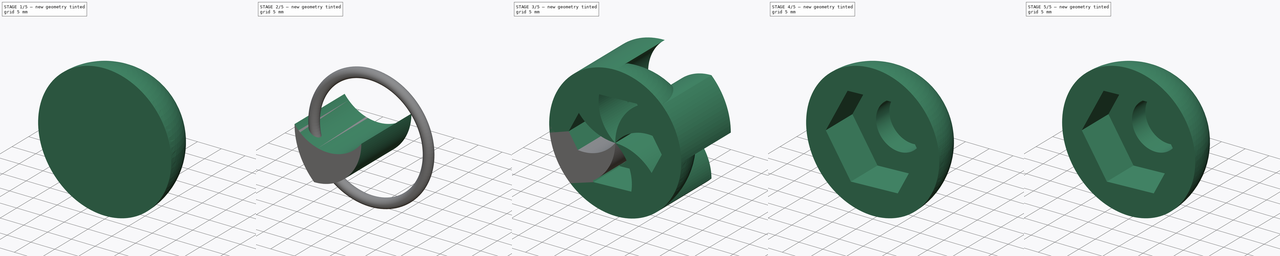
[diagram: build sequence overview — one tinted view per stage of 5, left to right]
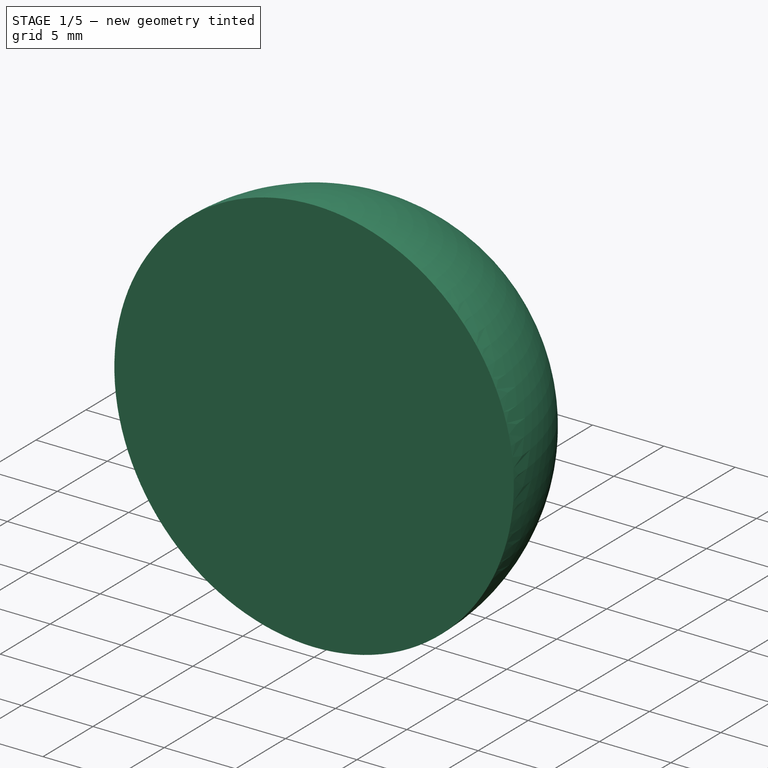
[diagram: stage 1 of 5 — iso view after this stage's code; geometry added in this stage tinted green]
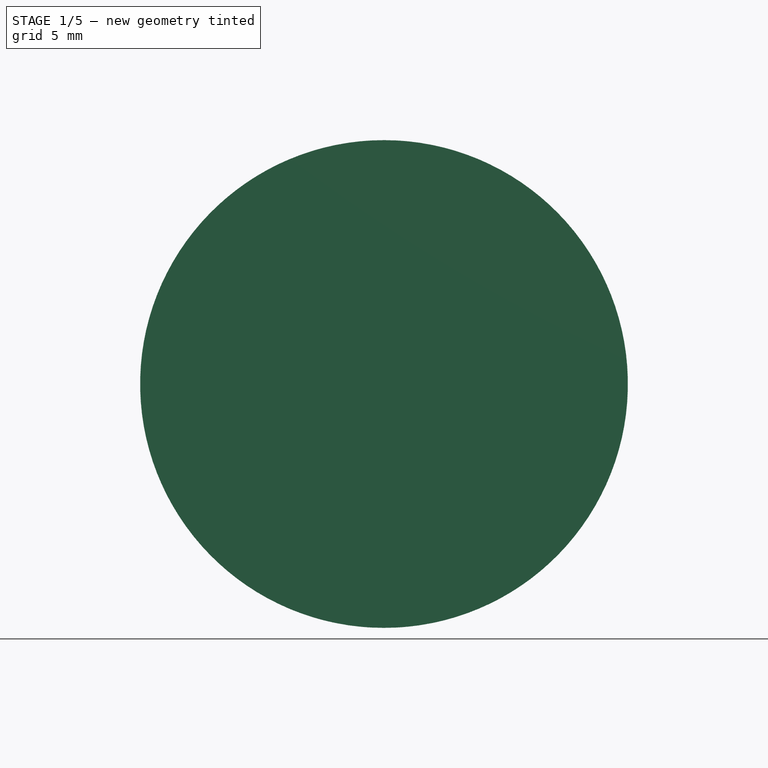
[diagram: stage 1 of 5 — front view after this stage's code; geometry added in this stage tinted green]
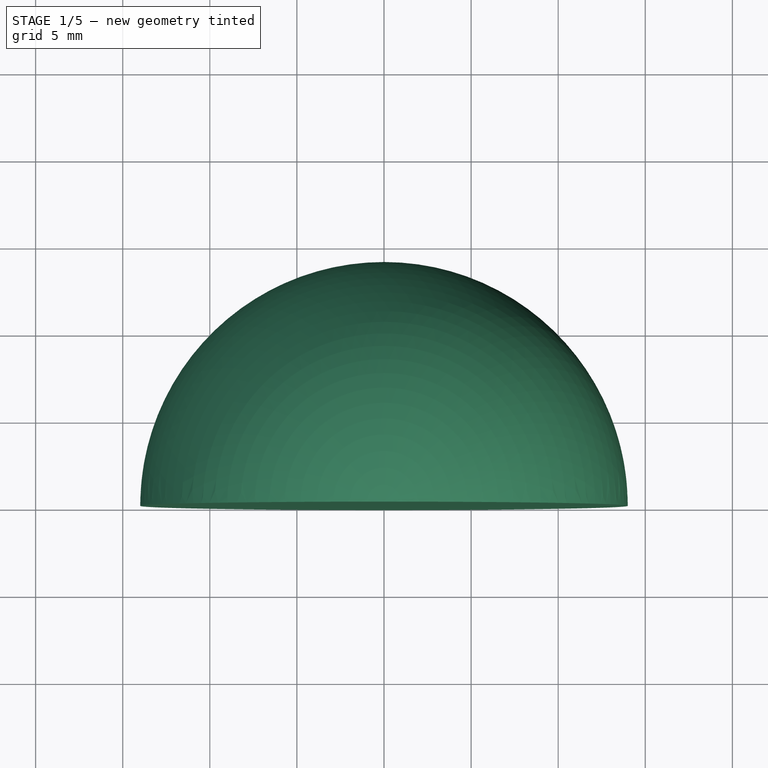
[diagram: stage 1 of 5 — top view after this stage's code; geometry added in this stage tinted green]
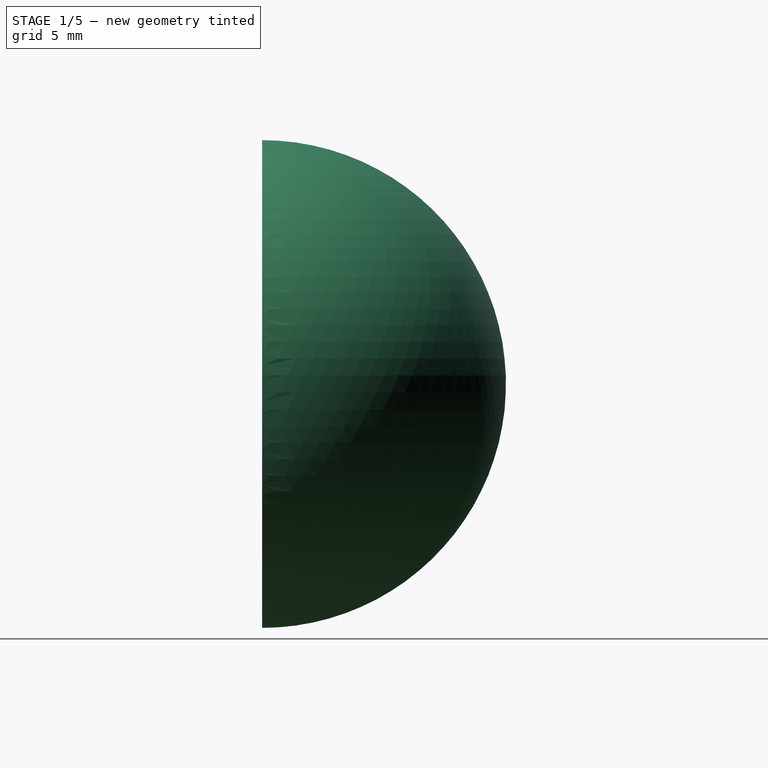
[diagram: stage 1 of 5 — right view after this stage's code; geometry added in this stage tinted green]
FCSTD DOCUMENT  (FreeCAD 0.16R5667 (Git))
Label: embellecedor-tuercaM10
License: All rights reserved
LicenseURL: http://en.wikipedia.org/wiki/All_rights_reserved
objects: Part::FeaturePython×6, Sketcher::SketchObject×3, PartDesign::Pocket×2, App::DocumentObjectGroup×2, Part::Cut×2, Part::Sphere×1, Part::Extrusion×1, Part::MultiCommon×1, Part::Torus×1, Part::MultiFuse×1
note: 20 computed .brp shape members not serialized (recipe doc carries the construction recipe); baked Part::Feature solids carry a one-line shape summary decoded from their .brp

FEATURE [Part::Sphere] Sphere  label="Esfera"
  Angle1 = -90
  Angle2 = 90
  Angle3 = 180
  Radius = 14
FEATURE [Part::Torus] Torus  label="Toro"
  Angle1 = -180
  Angle2 = 180
  Angle3 = 360
  Placement = pos=(0,3,0) rot=(1,0,0;1.5708rad)
  Radius1 = 12
  Radius2 = 1
FEATURE [Part::FeaturePython] Clone004  label="Clone of Toro"  # Draft clone (typed FeaturePython)
  Objects = -> [Torus]
  Placement = pos=(0,3,0) rot=(1,0,0;1.5708rad)
  Scale = (1,1,1)
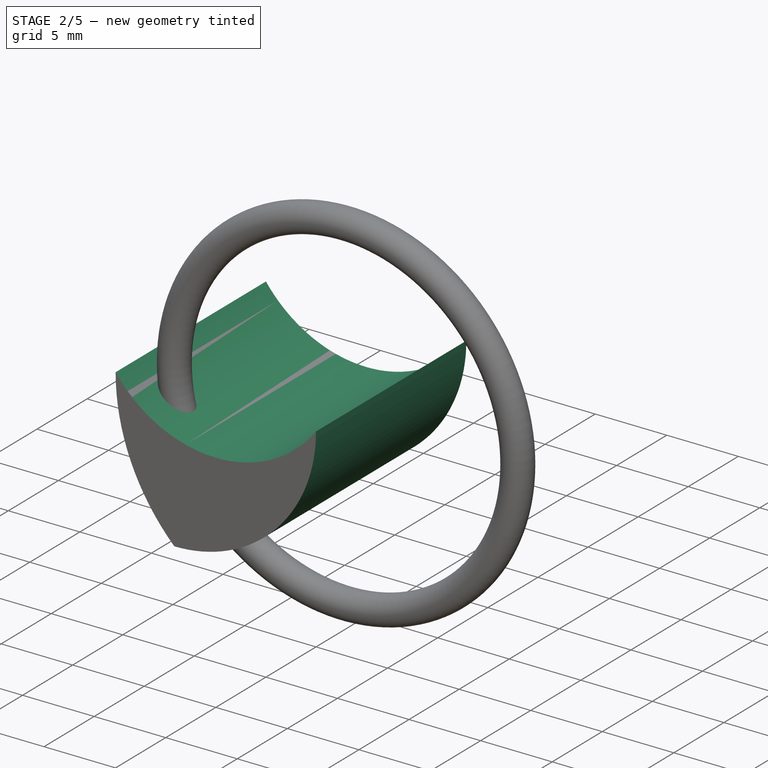
[diagram: stage 2 of 5 — iso view after this stage's code; geometry added in this stage tinted green]
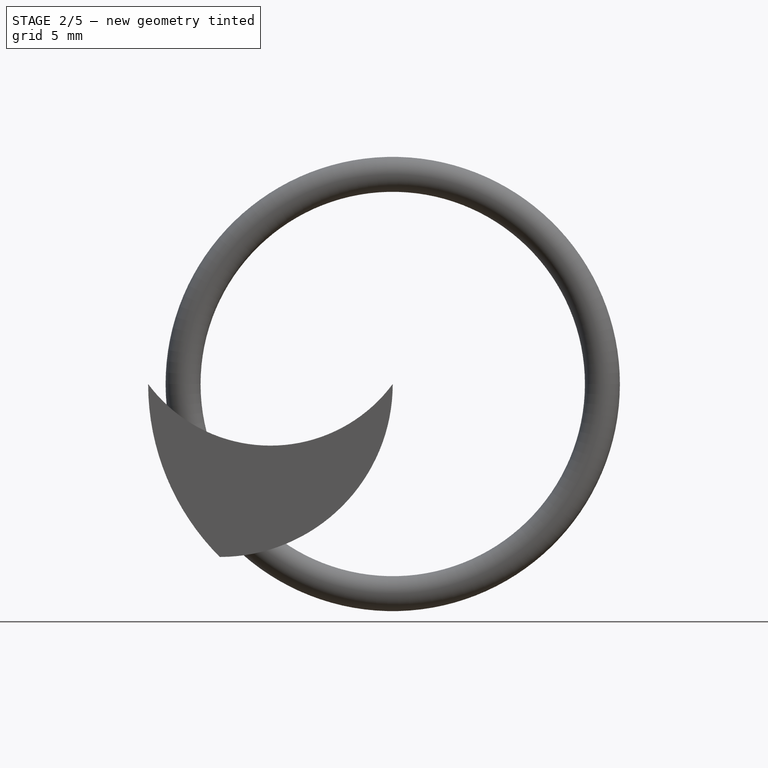
[diagram: stage 2 of 5 — front view after this stage's code; geometry added in this stage tinted green]
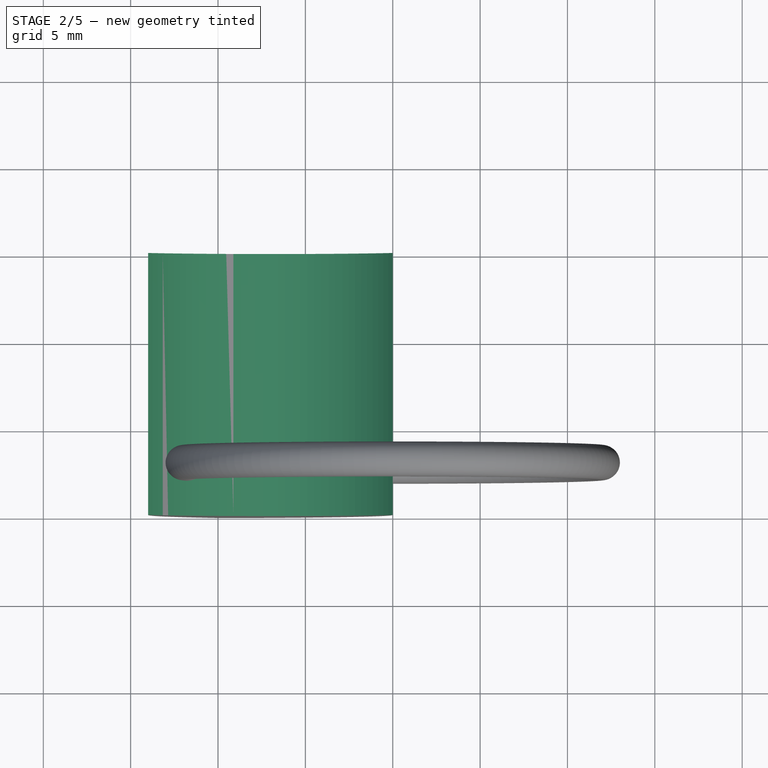
[diagram: stage 2 of 5 — top view after this stage's code; geometry added in this stage tinted green]
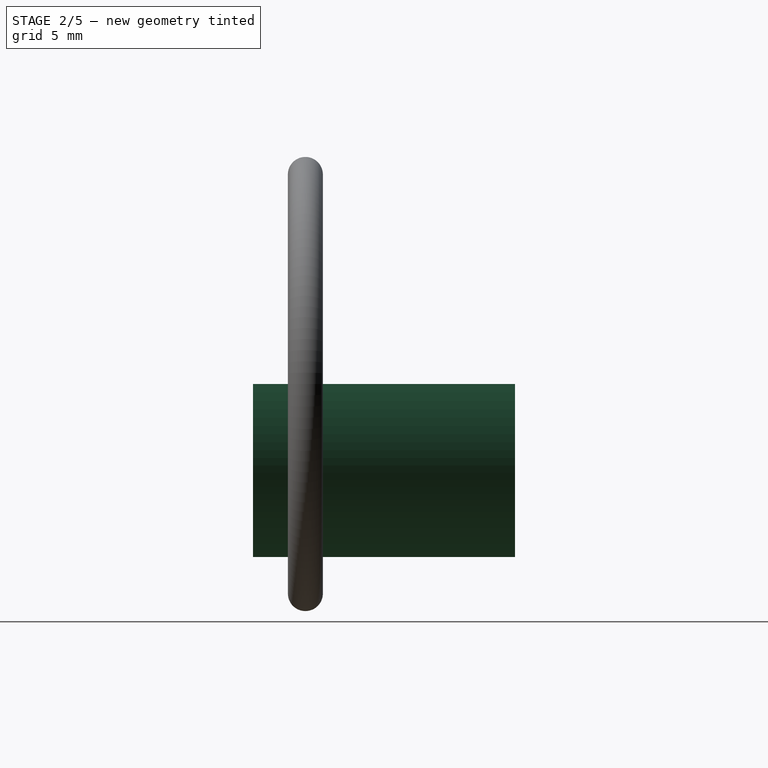
[diagram: stage 2 of 5 — right view after this stage's code; geometry added in this stage tinted green]
FEATURE [Sketcher::SketchObject] Sketch
  ExternalGeometry = -> [Sphere]
  Placement = pos=(0,0,0) rot=(1,0,0;1.5708rad)
  Support = -> Sphere [Face2]
  sketch-geometry (7):
    g0: LineSegment StartX=-5.27314 StartY=8.34649 StartZ=0 EndX=-9.86485 EndY=-0.393428 EndZ=0
    g1: LineSegment StartX=-9.86485 StartY=-0.393428 StartZ=0 EndX=-4.5917 EndY=-8.73992 EndZ=0
    g2: LineSegment StartX=-4.5917 StartY=-8.73992 StartZ=0 EndX=5.27314 EndY=-8.34649 EndZ=0
    g3: LineSegment StartX=5.27314 StartY=-8.34649 StartZ=0 EndX=9.86485 EndY=0.393428 EndZ=0
    g4: LineSegment StartX=9.86485 StartY=0.393428 StartZ=0 EndX=4.5917 EndY=8.73992 EndZ=0
    g5: LineSegment StartX=4.5917 StartY=8.73992 StartZ=0 EndX=-5.27314 EndY=8.34649 EndZ=0
    g6: Circle [constr] CenterX=0 CenterY=0 CenterZ=0 NormalX=0 NormalY=0 NormalZ=1 Radius=9.87269
  constraints (16):
    c: Coincident(g0,g1)
    c: Coincident(g1,g2)
    c: Coincident(g2,g3)
    c: Coincident(g3,g4)
    c: Coincident(g4,g5)
    c: Coincident(g5,g0)
    c: Equal(g0, g1-g5) x5
    c: PointOnObject(g0,g6)
    c: PointOnObject(g1,g6)
    c: PointOnObject(g2,g6)
    c: PointOnObject(g3,g6)
    c: PointOnObject(g4,g6)
    c: PointOnObject(g5,g6)
    c: Coincident(g3,g-1)
    c: Coincident(g6,g-1)
    c: Distance(g4,g2) = 17.1
FEATURE [PartDesign::Pocket] Pocket
  Length = 8
  Sketch = -> Sketch
  Type = 0
FEATURE [Sketcher::SketchObject] Sketch001
  Placement = pos=(0,8,0) rot=(1,0,0;1.5708rad)
  Support = -> Pocket [Face10]
  sketch-geometry (1):
    g0: Circle CenterX=0 CenterY=0 CenterZ=0 NormalX=0 NormalY=0 NormalZ=1 Radius=4.9
  constraints (2):
    c: Coincident(g0,g-1)
    c: Radius(g0) = 4.9
FEATURE [PartDesign::Pocket] Pocket001
  Length = 4
  Sketch = -> Sketch001
  Type = 0
FEATURE [Sketcher::SketchObject] Sketch002
  ExternalGeometry = -> [Pocket001]
  Placement = pos=(0,0,0) rot=(1,0,0;1.5708rad)
  Support = -> Pocket001 [Face3]
  sketch-geometry (4):
    g0: ArcOfCircle CenterX=-9.89949 CenterY=-1.6059e-08 CenterZ=0 NormalX=0 NormalY=0 NormalZ=1 Radius=9.89949 StartAngle=4.71239 EndAngle=6.28319
    g1: ArcOfCircle CenterX=-7 CenterY=5.18152 CenterZ=0 NormalX=0 NormalY=0 NormalZ=1 Radius=8.70908 StartAngle=3.7788 EndAngle=5.64597
    g2: ArcOfCircle CenterX=0 CenterY=0 CenterZ=0 NormalX=0 NormalY=0 NormalZ=1 Radius=14 StartAngle=3.14159 EndAngle=3.92699
    g3: LineSegment [constr] StartX=0 StartY=0 StartZ=0 EndX=-9.89949 EndY=-9.89949 EndZ=0
  constraints (12):
    c: Coincident(g0,g-1)
    c: Coincident(g1,g-1)
    c: PointOnObject(g1,g-4)
    c: Coincident(g2,g-1)
    c: Coincident(g2,g1)
    c: Coincident(g2,g0)
    c: PointOnObject(g1,g-1)
    c: Tangent(g0,g-2)
    c: Coincident(g3,g-1)
    c: PointOnObject(g3,g-3)
    c: Angle(g3,g-1) = 2.35619
    c: Coincident(g0,g3)
FEATURE [Part::Extrusion] Extrude_Sketch002  label="Sketch002_Extrude"
  Base = -> Sketch002
  Dir = (0,15,0)
  Solid = true
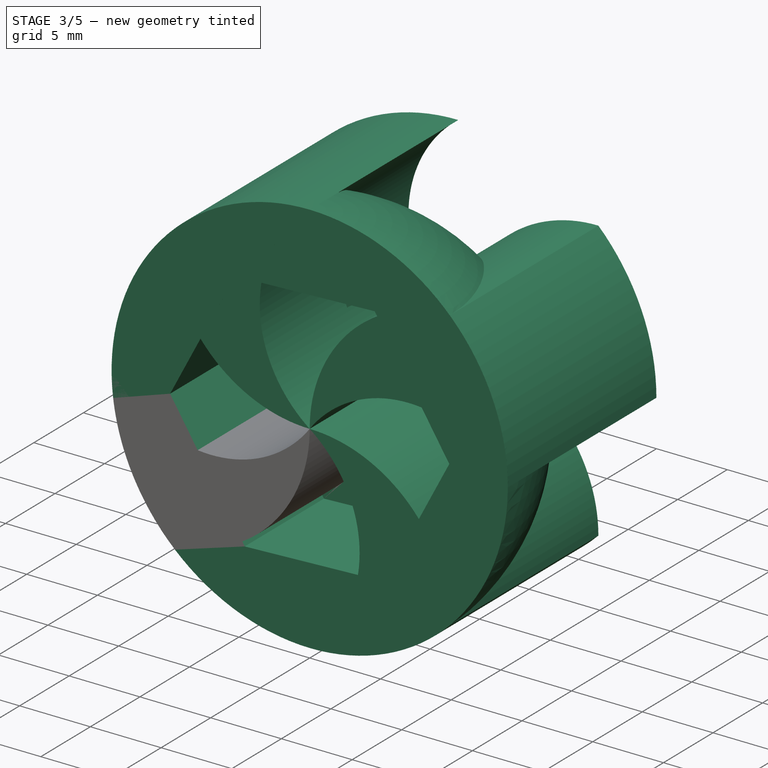
[diagram: stage 3 of 5 — iso view after this stage's code; geometry added in this stage tinted green]
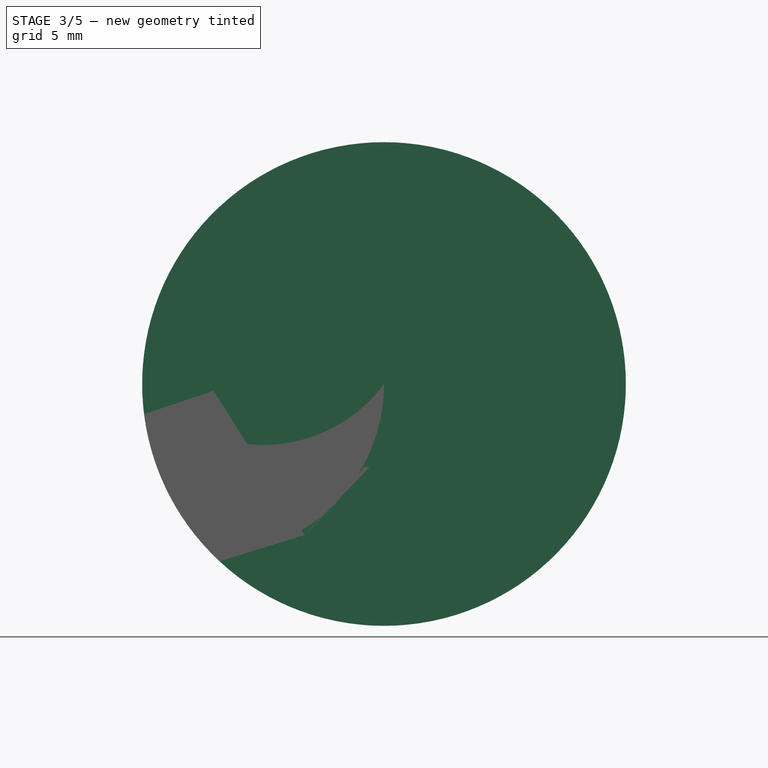
[diagram: stage 3 of 5 — front view after this stage's code; geometry added in this stage tinted green]
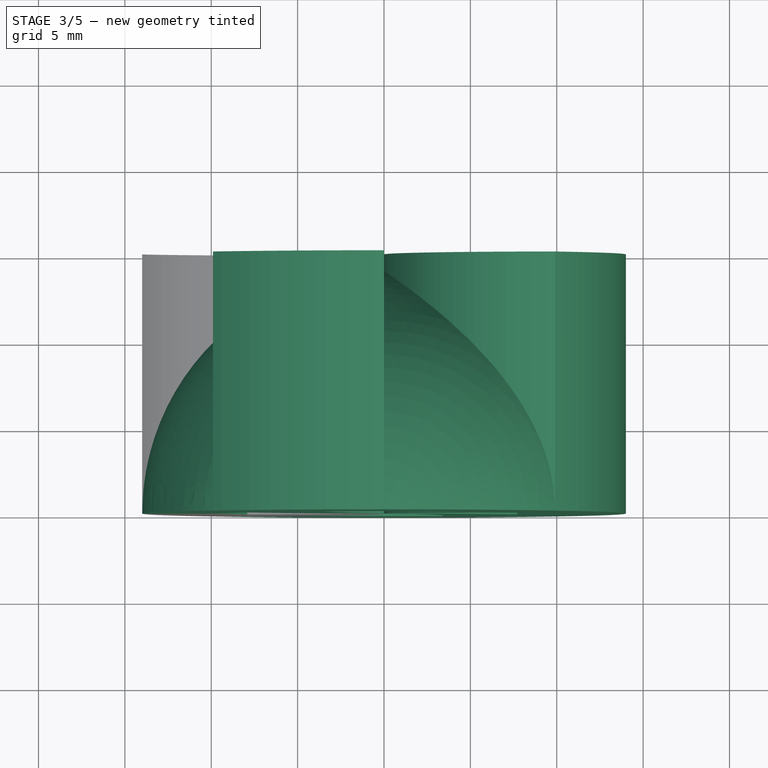
[diagram: stage 3 of 5 — top view after this stage's code; geometry added in this stage tinted green]
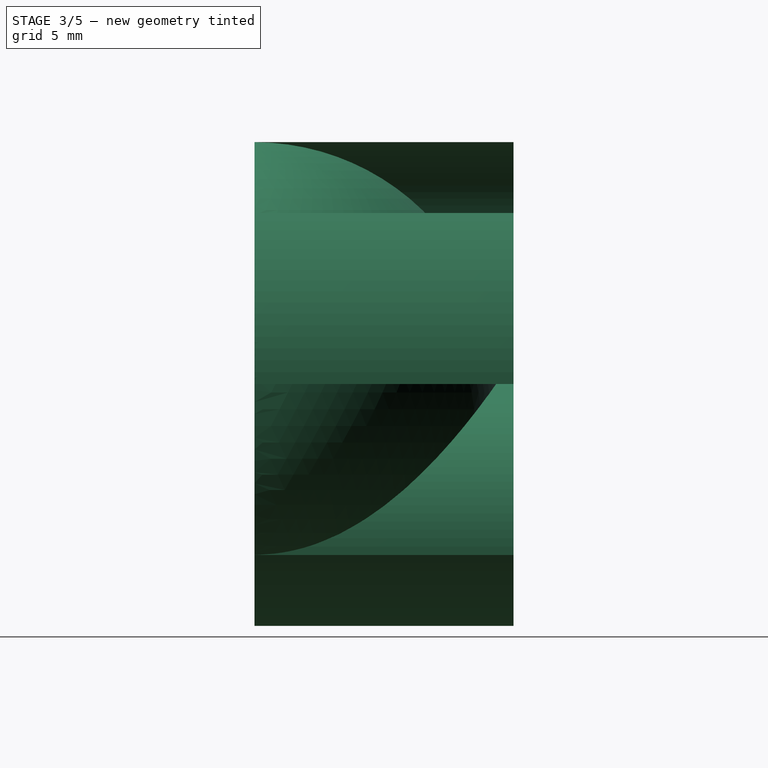
[diagram: stage 3 of 5 — right view after this stage's code; geometry added in this stage tinted green]
FEATURE [Part::FeaturePython] Array  # Draft array (typed FeaturePython)
  Angle = 360
  ArrayType = 1
  Axis = (0,1,0)
  Base = -> Extrude_Sketch002
  Center = (0,0,0)
  Fuse = false
  IntervalAxis = (0,0,0)
  IntervalX = (1,0,0)
  IntervalY = (0,1,0)
  IntervalZ = (0,0,0)
  NumberPolar = 4
  NumberX = 1
  NumberY = 1
  NumberZ = 1
FEATURE [Part::FeaturePython] Clone001  label="Clone of Pocket001"  # Draft clone (typed FeaturePython)
  Objects = -> [Pocket001]
  Scale = (1,1,1)
FEATURE [App::DocumentObjectGroup] Grupo001  label="Patron"
  Group = -> [Array]
FEATURE [Part::FeaturePython] Clone003  label="Clone of Array001"  # Draft clone (typed FeaturePython)
  Objects = -> [Array]
  Scale = (1,1,1)
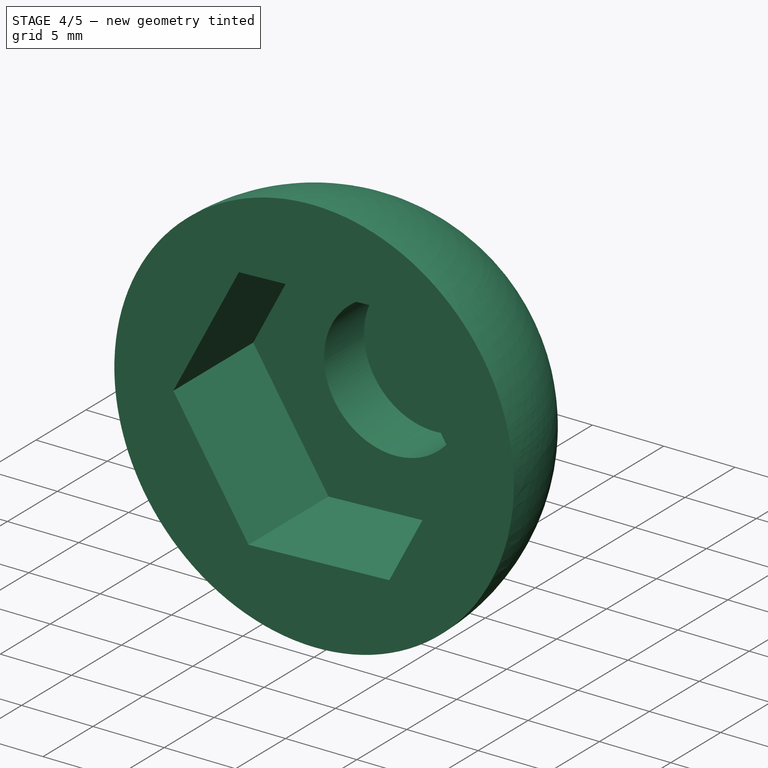
[diagram: stage 4 of 5 — iso view after this stage's code; geometry added in this stage tinted green]
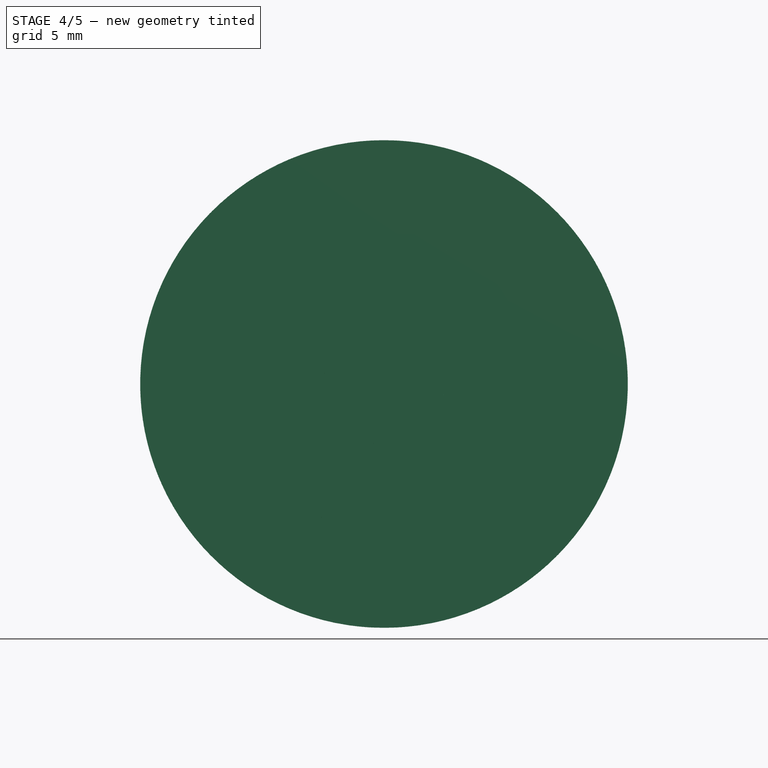
[diagram: stage 4 of 5 — front view after this stage's code; geometry added in this stage tinted green]
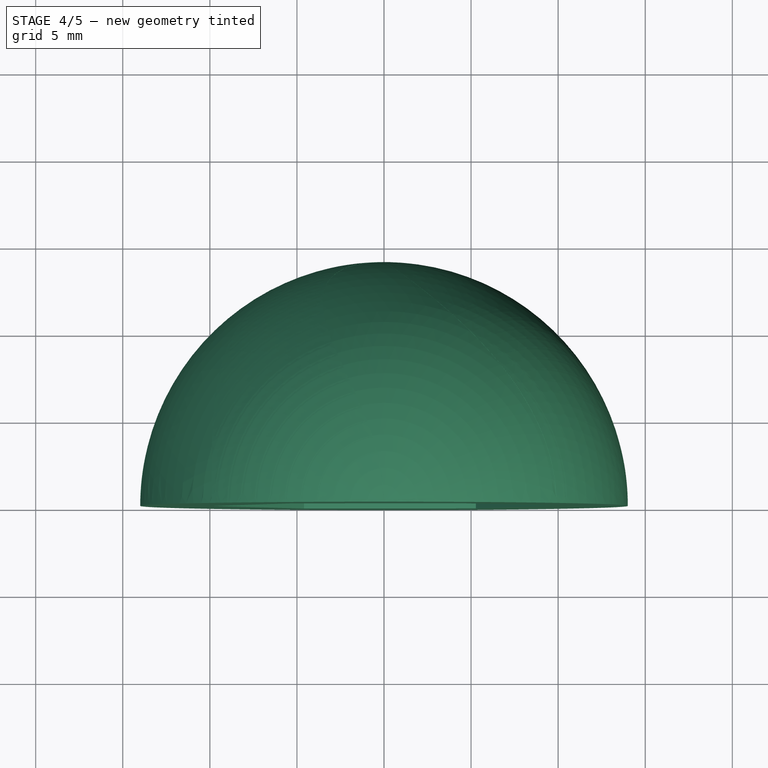
[diagram: stage 4 of 5 — top view after this stage's code; geometry added in this stage tinted green]
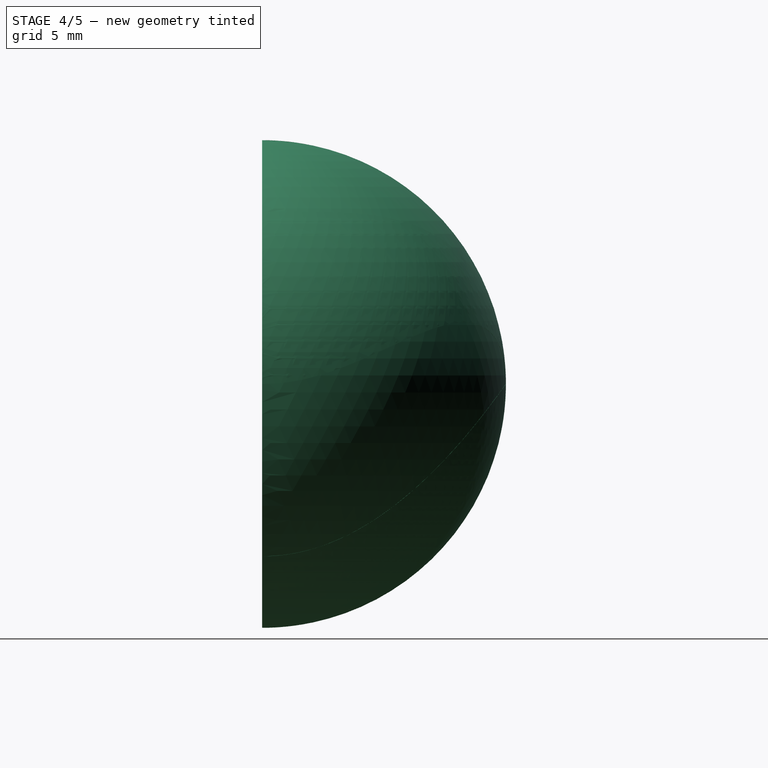
[diagram: stage 4 of 5 — right view after this stage's code; geometry added in this stage tinted green]
FEATURE [Part::FeaturePython] Clone002  label="Clone of Pocket002"  # Draft clone (typed FeaturePython)
  Objects = -> [Pocket001]
  Scale = (1,1,1)
FEATURE [Part::MultiCommon] Common
  Shapes = -> [Clone003,Clone001]
FEATURE [Part::Cut] Cut001
  Base = -> Common
  Tool = -> Clone004
FEATURE [App::DocumentObjectGroup] Grupo  label="DualColor"
  Group = -> [Grupo001,Fusion,Cut001]
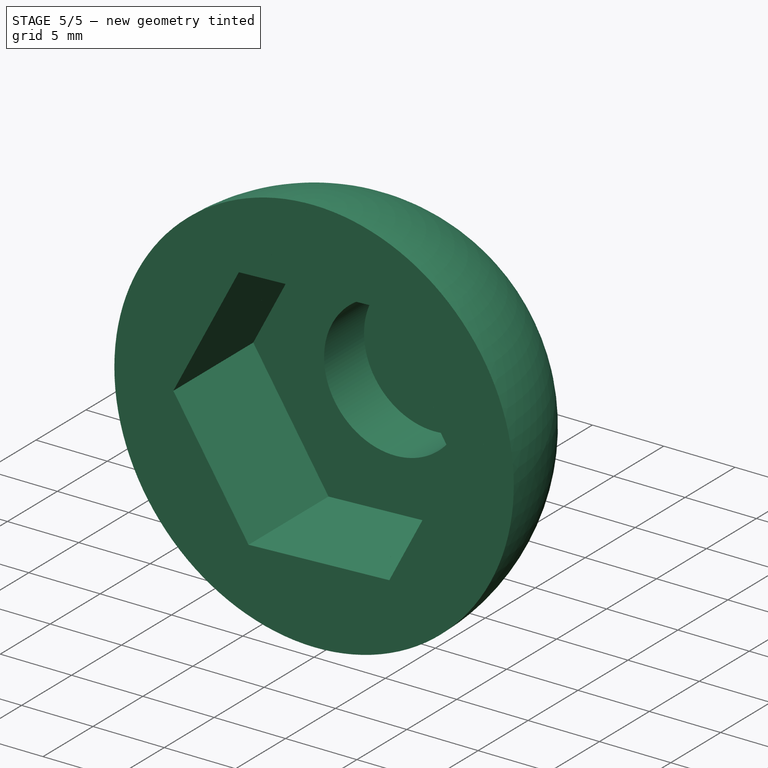
[diagram: stage 5 of 5 — iso view after this stage's code; geometry added in this stage tinted green]
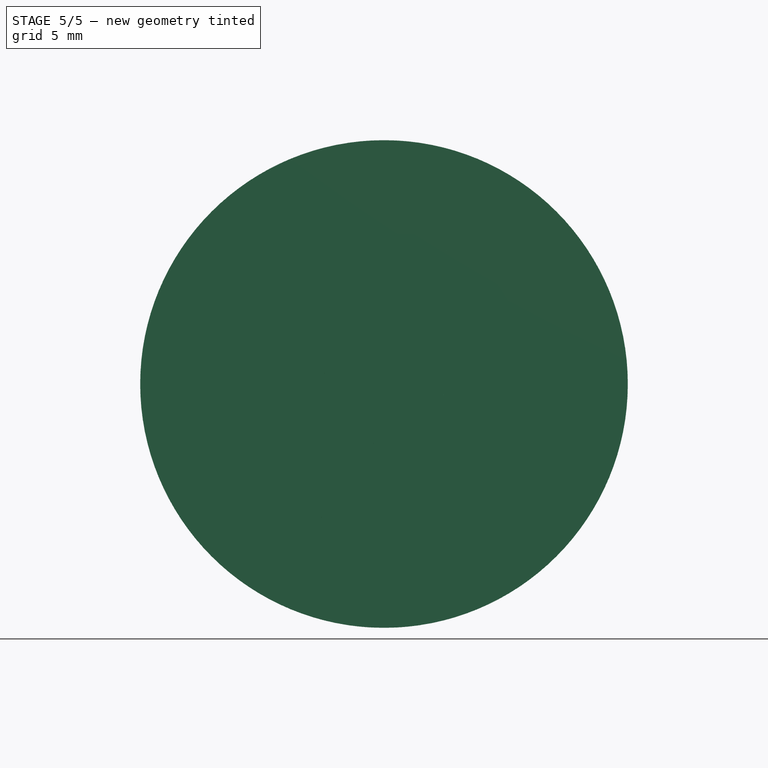
[diagram: stage 5 of 5 — front view after this stage's code; geometry added in this stage tinted green]
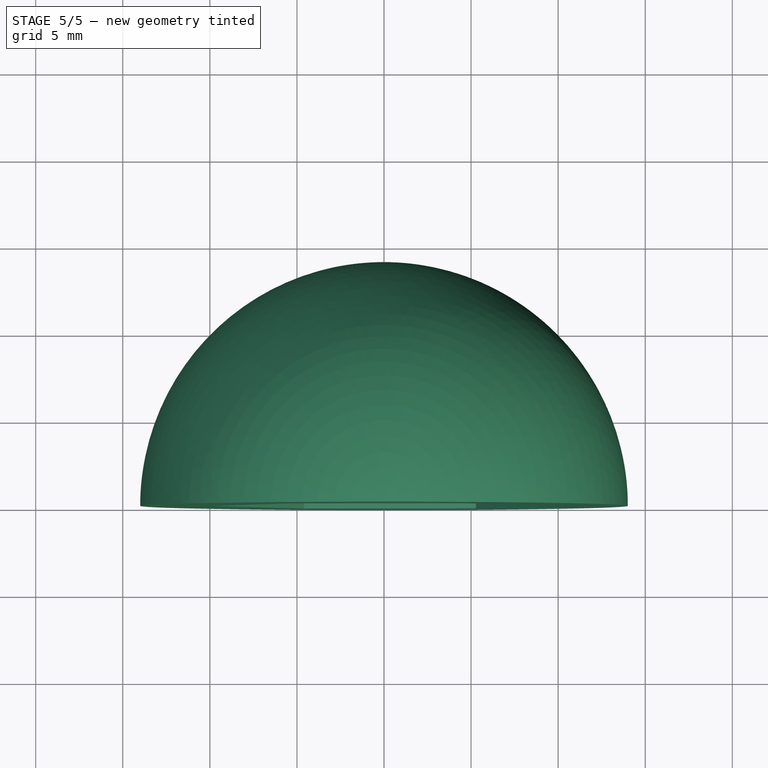
[diagram: stage 5 of 5 — top view after this stage's code; geometry added in this stage tinted green]
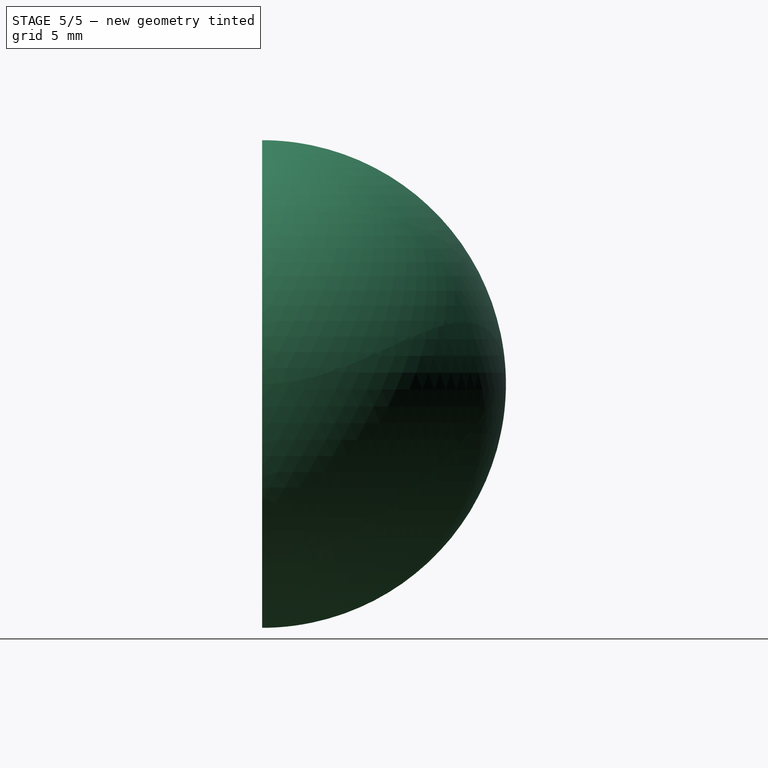
[diagram: stage 5 of 5 — right view after this stage's code; geometry added in this stage tinted green]
FEATURE [Part::FeaturePython] Clone  label="Clone of Array"  # Draft clone (typed FeaturePython)
  Objects = -> [Array]
  Scale = (1,1,1)
FEATURE [Part::Cut] Cut
  Base = -> Clone002
  Tool = -> Clone
FEATURE [Part::MultiFuse] Fusion
  Shapes = -> [Torus,Cut]
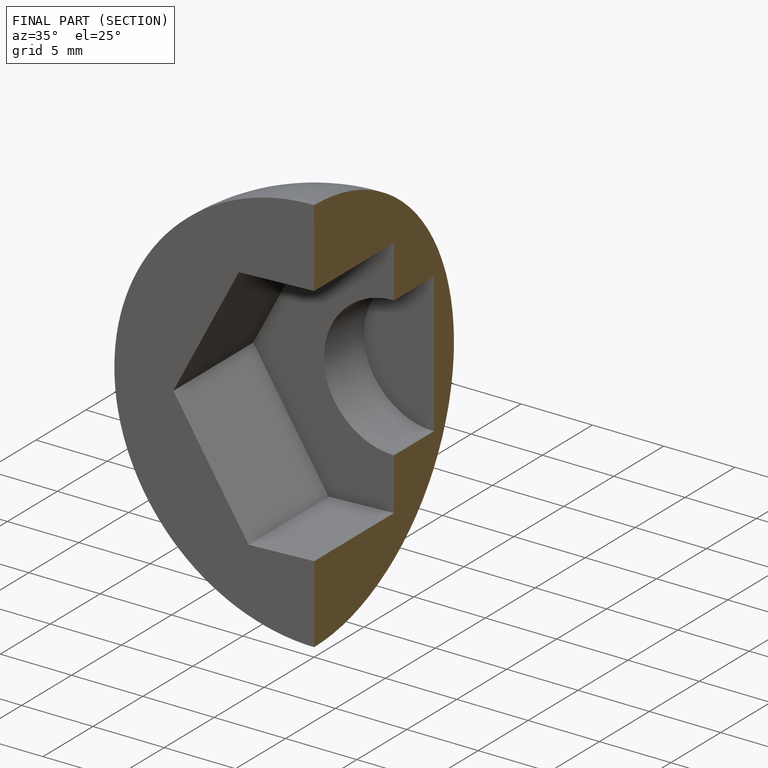
[diagram: finished part — half-section view (interior)]
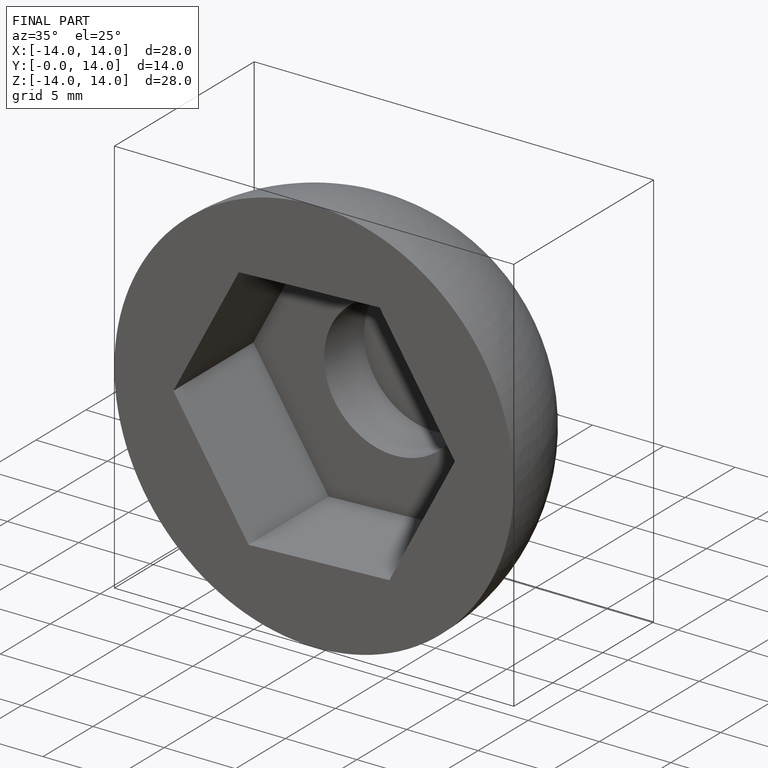
[diagram: finished part — iso view with bounding-box wireframe]
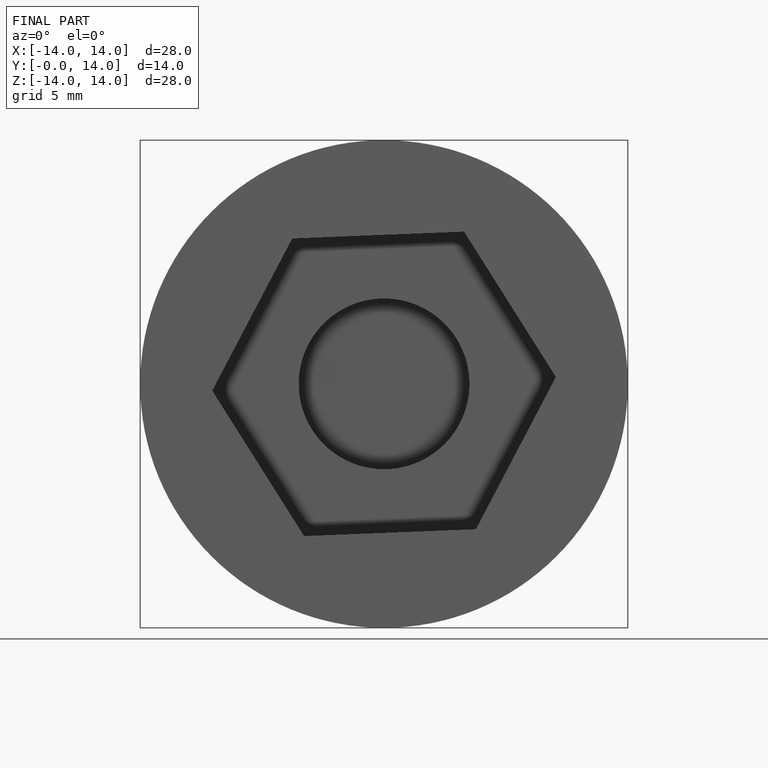
[diagram: finished part — front view with bounding-box wireframe]
